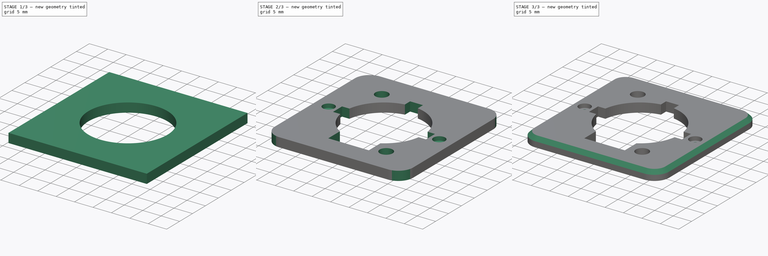
[diagram: build sequence overview — one tinted view per stage of 3, left to right]
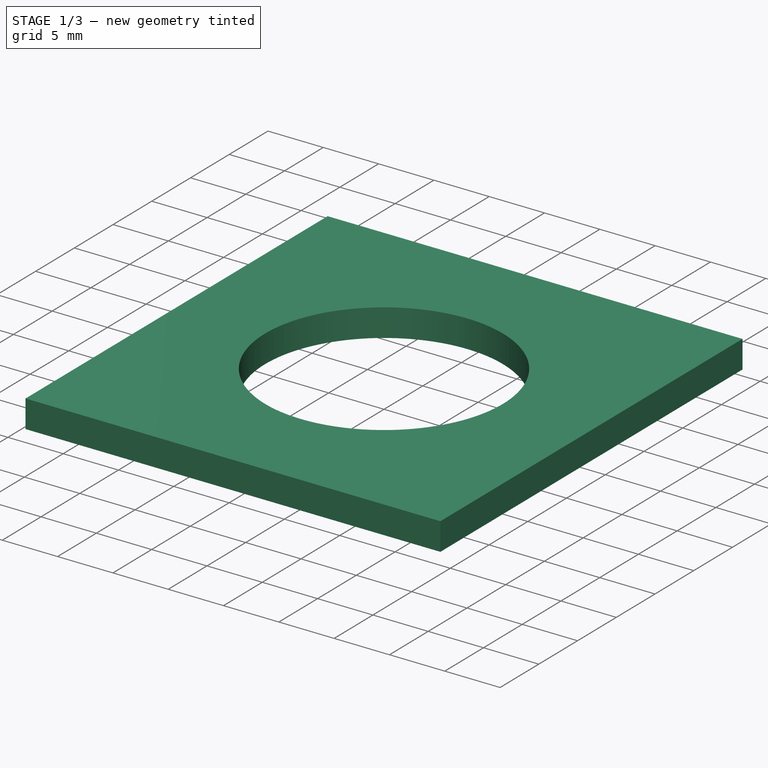
[diagram: stage 1 of 3 — iso view after this stage's code; geometry added in this stage tinted green]
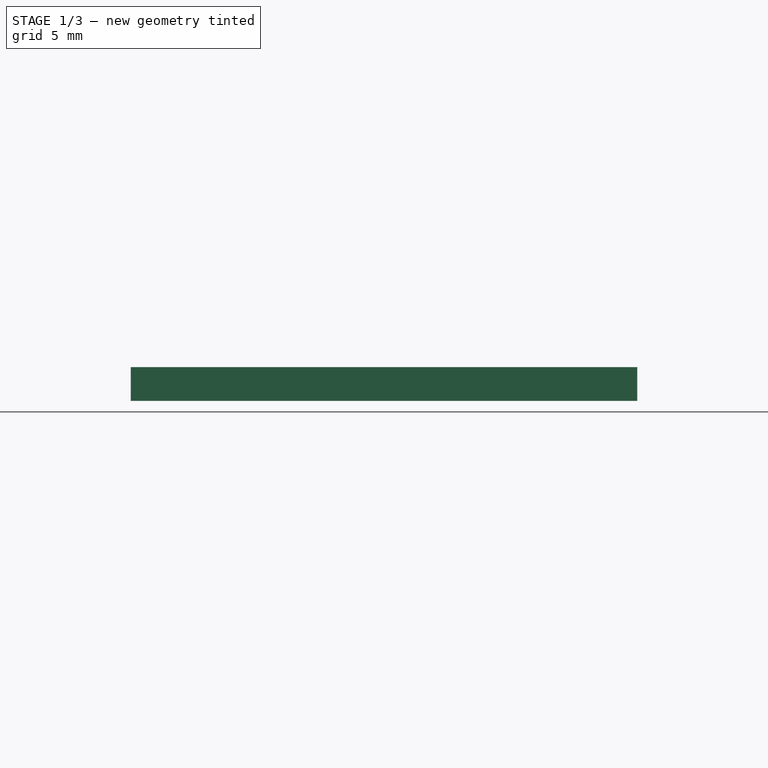
[diagram: stage 1 of 3 — front view after this stage's code; geometry added in this stage tinted green]
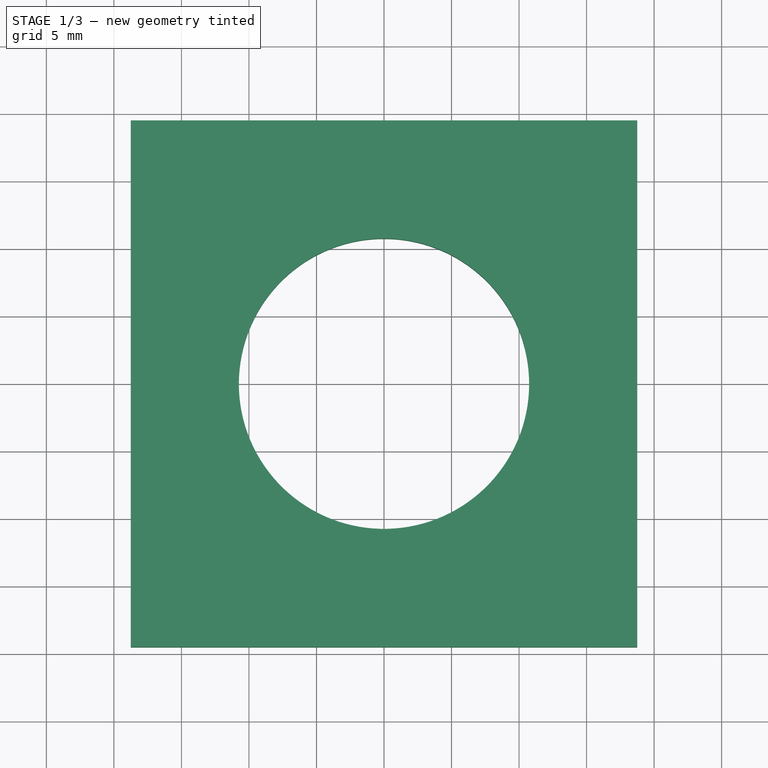
[diagram: stage 1 of 3 — top view after this stage's code; geometry added in this stage tinted green]
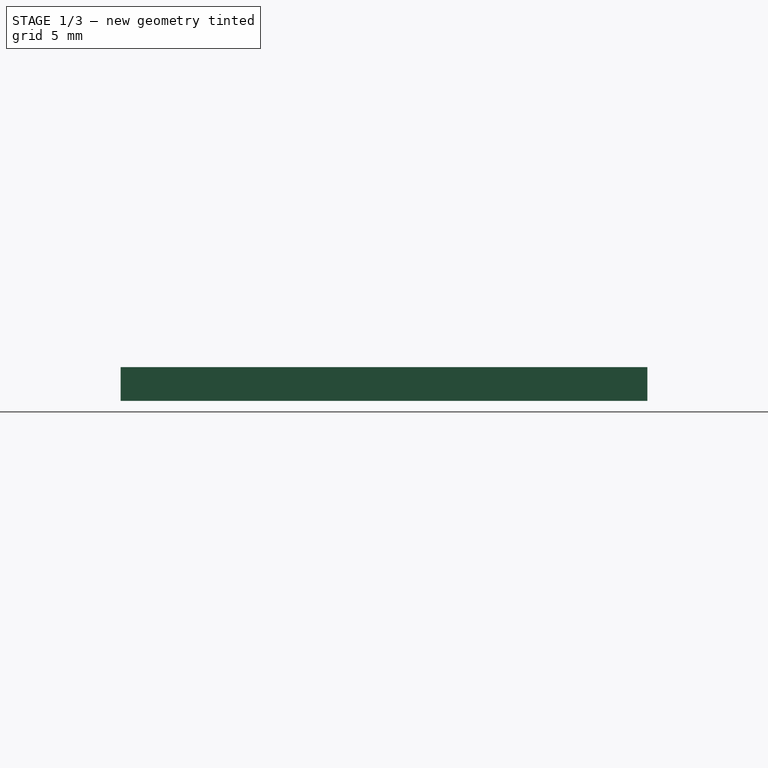
[diagram: stage 1 of 3 — right view after this stage's code; geometry added in this stage tinted green]
FCSTD DOCUMENT  (FreeCAD 0.21R33694 (Git))
Label: inline_box_xlr_socket_end
License: All rights reserved
LicenseURL: http://en.wikipedia.org/wiki/All_rights_reserved
objects: Sketcher::SketchObject×5, PartDesign::Pocket×4, PartDesign::Pad×1, PartDesign::Fillet×1, PartDesign::Chamfer×1, PartDesign::Body×1
note: 20 computed .brp shape members not serialized (recipe doc carries the construction recipe); baked Part::Feature solids carry a one-line shape summary decoded from their .brp

FEATURE [Sketcher::SketchObject] Sketch
  FullyConstrained = true
  MapMode = 5
  Support = -> [XY_Plane]
  sketch-geometry (4):
    g0: LineSegment StartX=-18.75 StartY=19.5 StartZ=0 EndX=18.75 EndY=19.5 EndZ=0
    g1: LineSegment StartX=18.75 StartY=19.5 StartZ=0 EndX=18.75 EndY=-19.5 EndZ=0
    g2: LineSegment StartX=18.75 StartY=-19.5 StartZ=0 EndX=-18.75 EndY=-19.5 EndZ=0
    g3: LineSegment StartX=-18.75 StartY=-19.5 StartZ=0 EndX=-18.75 EndY=19.5 EndZ=0
  constraints (12):
    c: Coincident(g0,g1)
    c: Coincident(g1,g2)
    c: Coincident(g2,g3)
    c: Coincident(g3,g0)
    c: Horizontal(g0)
    c: Horizontal(g2)
    c: Vertical(g1)
    c: Vertical(g3)
    c: DistanceX(g0,g0) = 37.5
    c: DistanceY(g1,g1) = 39
    c: DistanceY(g-1,g0) = 19.5
    c: DistanceX(g0,g-1) = 18.75
FEATURE [PartDesign::Pad] Pad
  Direction = (0,0,1)
  Length = 2.5
  Length2 = 10
  Profile = -> Sketch
  ReferenceAxis = -> Sketch [N_Axis]
  Type = 0
FEATURE [Sketcher::SketchObject] Sketch001
  FullyConstrained = true
  MapMode = 5
  Placement = pos=(0,0,2.5) rot=(0,0,1;0rad)
  Support = -> [Pad]
  sketch-geometry (1):
    g0: Circle CenterX=0 CenterY=0 CenterZ=0 NormalX=0 NormalY=0 NormalZ=1 AngleXU=0 Radius=10.75
  constraints (2):
    c: Coincident(g0,g-1)
    c: Diameter(g0) = 21.5
FEATURE [PartDesign::Pocket] Pocket
  BaseFeature = -> Pad
  Direction = (0,0,-1)
  Length = 5
  Length2 = 5
  Profile = -> Sketch001
  ReferenceAxis = -> Sketch001 [N_Axis]
  Type = 0
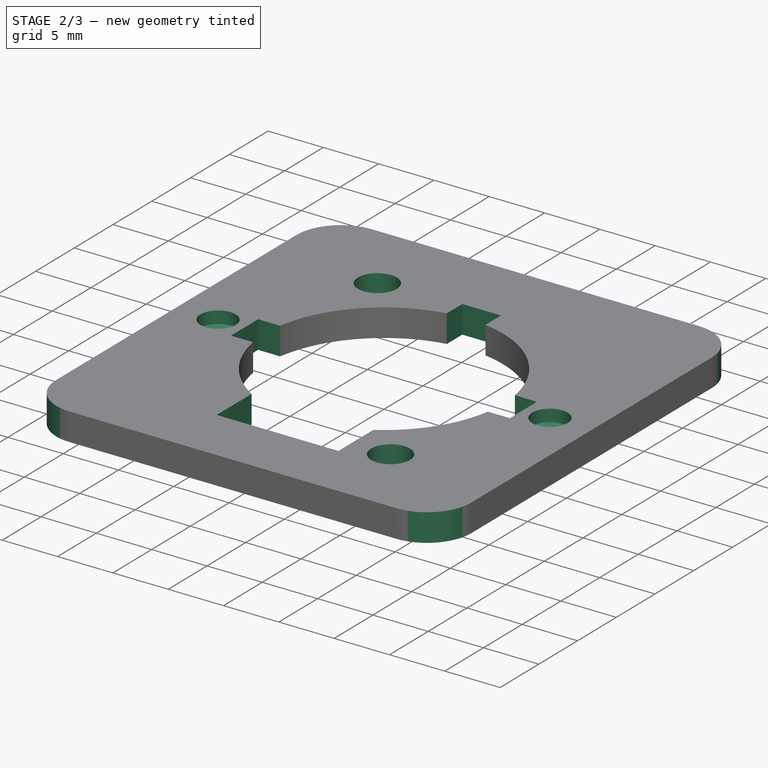
[diagram: stage 2 of 3 — iso view after this stage's code; geometry added in this stage tinted green]
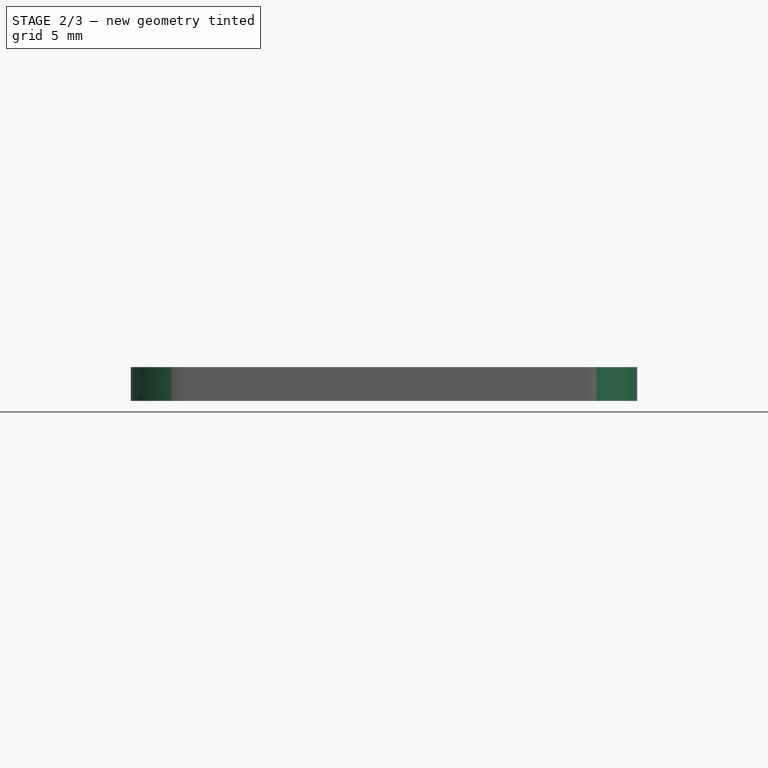
[diagram: stage 2 of 3 — front view after this stage's code; geometry added in this stage tinted green]
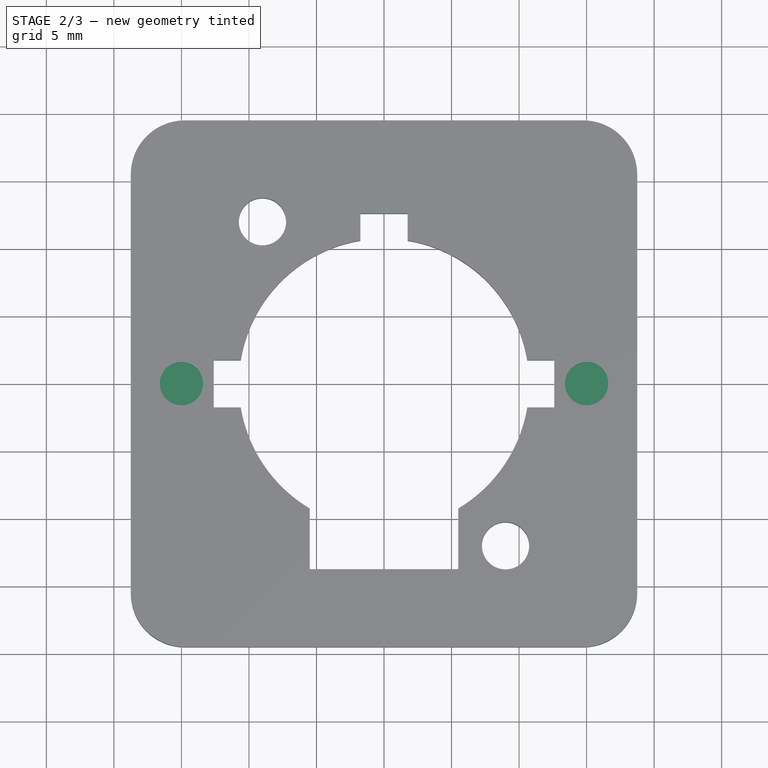
[diagram: stage 2 of 3 — top view after this stage's code; geometry added in this stage tinted green]
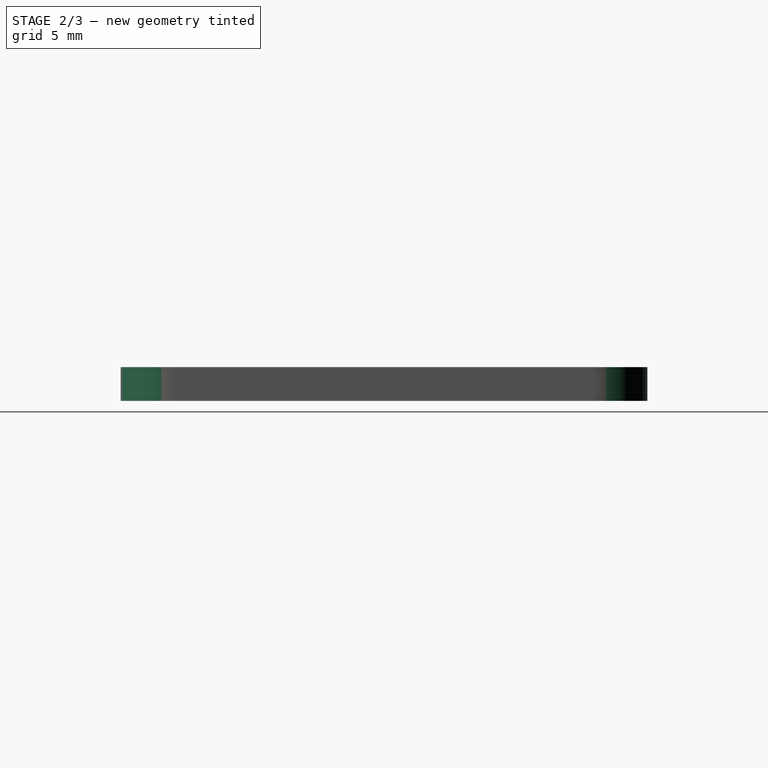
[diagram: stage 2 of 3 — right view after this stage's code; geometry added in this stage tinted green]
FEATURE [Sketcher::SketchObject] Sketch002
  ExternalGeometry = -> [Pocket]
  FullyConstrained = true
  MapMode = 5
  Placement = pos=(0,0,2.5) rot=(0,0,1;0rad)
  Support = -> [Pocket]
  sketch-geometry (18):
    g0: LineSegment StartX=10.6066 StartY=1.75 StartZ=0 EndX=12.6066 EndY=1.75 EndZ=0
    g1: LineSegment StartX=12.6066 StartY=1.75 StartZ=0 EndX=12.6066 EndY=-1.75 EndZ=0
    g2: LineSegment StartX=12.6066 StartY=-1.75 StartZ=0 EndX=10.6066 EndY=-1.75 EndZ=0
    g3: LineSegment StartX=10.6066 StartY=-1.75 StartZ=0 EndX=10.6066 EndY=1.75 EndZ=0
    g4: LineSegment StartX=-12.6066 StartY=1.75 StartZ=0 EndX=-10.6066 EndY=1.75 EndZ=0
    g5: LineSegment StartX=-10.6066 StartY=1.75 StartZ=0 EndX=-10.6066 EndY=-1.75 EndZ=0
    g6: LineSegment StartX=-10.6066 StartY=-1.75 StartZ=0 EndX=-12.6066 EndY=-1.75 EndZ=0
    g7: LineSegment StartX=-12.6066 StartY=-1.75 StartZ=0 EndX=-12.6066 EndY=1.75 EndZ=0
    g8: LineSegment StartX=-1.75 StartY=12.6066 StartZ=0 EndX=1.75 EndY=12.6066 EndZ=0
    g9: LineSegment StartX=1.75 StartY=12.6066 StartZ=0 EndX=1.75 EndY=10.6066 EndZ=0
    g10: LineSegment StartX=1.75 StartY=10.6066 StartZ=0 EndX=-1.75 EndY=10.6066 EndZ=0
    g11: LineSegment StartX=-1.75 StartY=10.6066 StartZ=0 EndX=-1.75 EndY=12.6066 EndZ=0
    g12: LineSegment StartX=-5.5 StartY=-9.23648 StartZ=0 EndX=5.5 EndY=-9.23648 EndZ=0
    g13: LineSegment StartX=5.5 StartY=-9.23648 StartZ=0 EndX=5.5 EndY=-13.7365 EndZ=0
    g14: LineSegment StartX=5.5 StartY=-13.7365 StartZ=0 EndX=-5.5 EndY=-13.7365 EndZ=0
    g15: LineSegment StartX=-5.5 StartY=-13.7365 StartZ=0 EndX=-5.5 EndY=-9.23648 EndZ=0
    g16: Circle CenterX=-9 CenterY=12 CenterZ=0 NormalX=0 NormalY=0 NormalZ=1 AngleXU=0 Radius=1.75
    g17: Circle CenterX=9 CenterY=-12 CenterZ=0 NormalX=0 NormalY=0 NormalZ=1 AngleXU=0 Radius=1.75
  constraints (54):
    c: Coincident(g0,g1)
    c: Coincident(g1,g2)
    c: Coincident(g2,g3)
    c: Coincident(g3,g0)
    c: Horizontal(g0)
    c: Horizontal(g2)
    c: Vertical(g1)
    c: Vertical(g3)
    c: Coincident(g4,g5)
    c: Coincident(g5,g6)
    c: Coincident(g6,g7)
    c: Coincident(g7,g4)
    c: Horizontal(g4)
    c: Horizontal(g6)
    c: Vertical(g5)
    c: Vertical(g7)
    c: Coincident(g8,g9)
    c: Coincident(g9,g10)
    c: Coincident(g10,g11)
    c: Coincident(g11,g8)
    c: Horizontal(g8)
    c: Horizontal(g10)
    c: Vertical(g9)
    c: Vertical(g11)
    c: Equal(g0,g9)
    c: Equal(g9,g4)
    c: DistanceY(g9,g9) = 2
    c: Equal(g1,g8)
    c: Equal(g8,g7)
    c: DistanceX(g8,g8) = 3.5
    c: DistanceY(g-1,g4) = 1.75
    c: DistanceY(g-1,g0) = 1.75
    c: DistanceX(g10,g-1) = 1.75
    c: PointOnObject(g10,g-3)
    c: PointOnObject(g4,g-3)
    c: PointOnObject(g0,g-3)
    c: Coincident(g12,g13)
    c: Coincident(g13,g14)
    c: Coincident(g14,g15)
    c: Coincident(g15,g12)
    c: Horizontal(g12)
    c: Horizontal(g14)
    c: Vertical(g13)
    c: Vertical(g15)
    c: DistanceX(g12,g12) = 11
    c: DistanceX(g12,g-3) = 5.5
    c: DistanceY(g13,g13) = 4.5
    c: PointOnObject(g12,g-3)
    c: Equal(g17,g16)
    c: Diameter(g17) = 3.5
    c: DistanceY(g-3,g16) = 12
    c: DistanceY(g17,g-3) = 12
    c: DistanceX(g-3,g17) = 9
    c: DistanceX(g16,g-3) = 9
FEATURE [PartDesign::Pocket] Pocket001
  BaseFeature = -> Pocket
  Direction = (0,0,-1)
  Length = 5
  Length2 = 5
  Profile = -> Sketch002
  ReferenceAxis = -> Sketch002 [N_Axis]
  Type = 0
FEATURE [PartDesign::Fillet] Fillet
  Base = -> Pocket001 [Edge8,Edge5,Edge2,Edge1]
  BaseFeature = -> Pocket001
  Radius = 4
  SupportTransform = false
  UseAllEdges = false
FEATURE [Sketcher::SketchObject] Sketch003
  FullyConstrained = true
  MapMode = 5
  Placement = pos=(0,0,2.5) rot=(0,0,1;0rad)
  Support = -> [Fillet]
  sketch-geometry (2):
    g0: Circle CenterX=-15 CenterY=0 CenterZ=0 NormalX=0 NormalY=0 NormalZ=1 AngleXU=0 Radius=1.6
    g1: Circle CenterX=15 CenterY=0 CenterZ=0 NormalX=0 NormalY=0 NormalZ=1 AngleXU=0 Radius=1.6
  constraints (6):
    c: PointOnObject(g0,g-1)
    c: PointOnObject(g1,g-1)
    c: DistanceX(g0,g1) = 30
    c: Equal(g0,g1)
    c: Diameter(g0) = 3.2
    c: DistanceX(g0,g-1) = 15
FEATURE [PartDesign::Pocket] Pocket002
  BaseFeature = -> Fillet
  Direction = (0,0,-1)
  Length = 1.1
  Length2 = 5
  Profile = -> Sketch003
  ReferenceAxis = -> Sketch003 [N_Axis]
  Type = 0
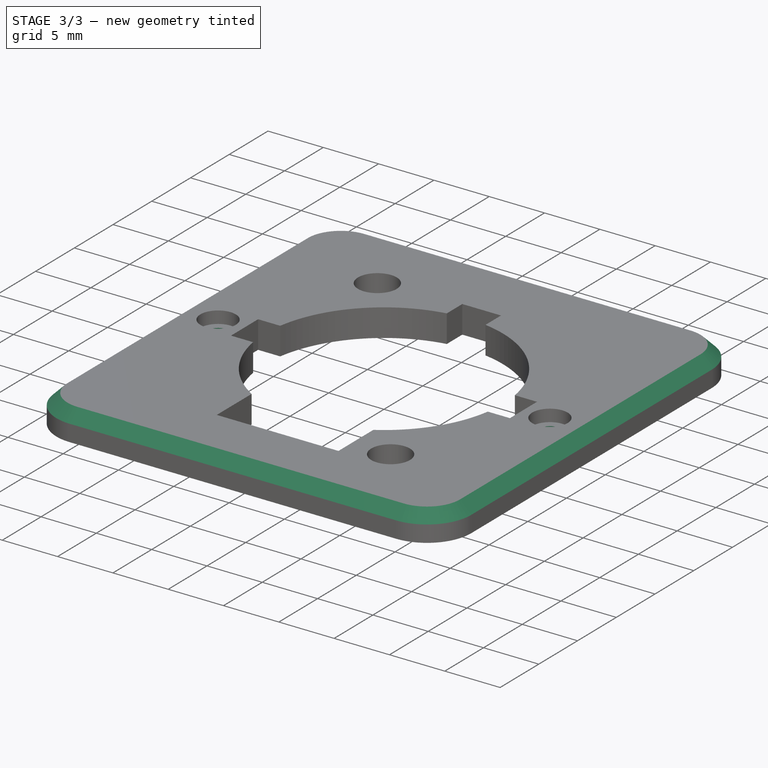
[diagram: stage 3 of 3 — iso view after this stage's code; geometry added in this stage tinted green]
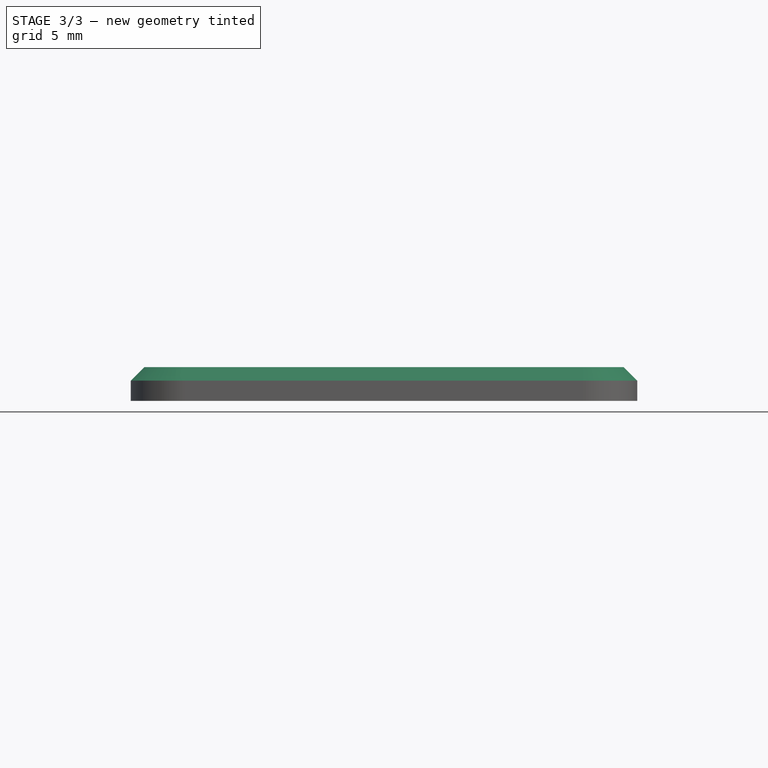
[diagram: stage 3 of 3 — front view after this stage's code; geometry added in this stage tinted green]
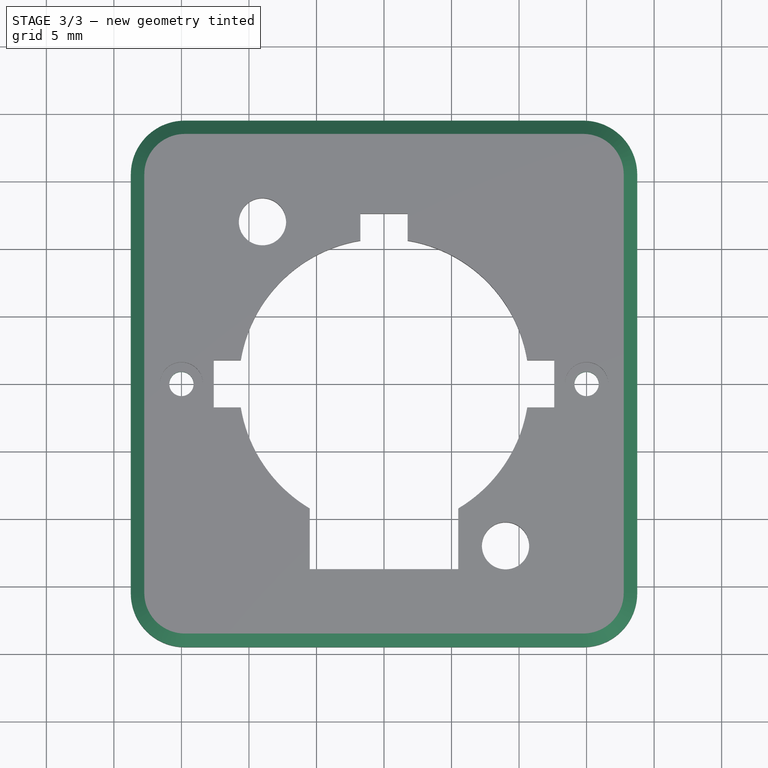
[diagram: stage 3 of 3 — top view after this stage's code; geometry added in this stage tinted green]
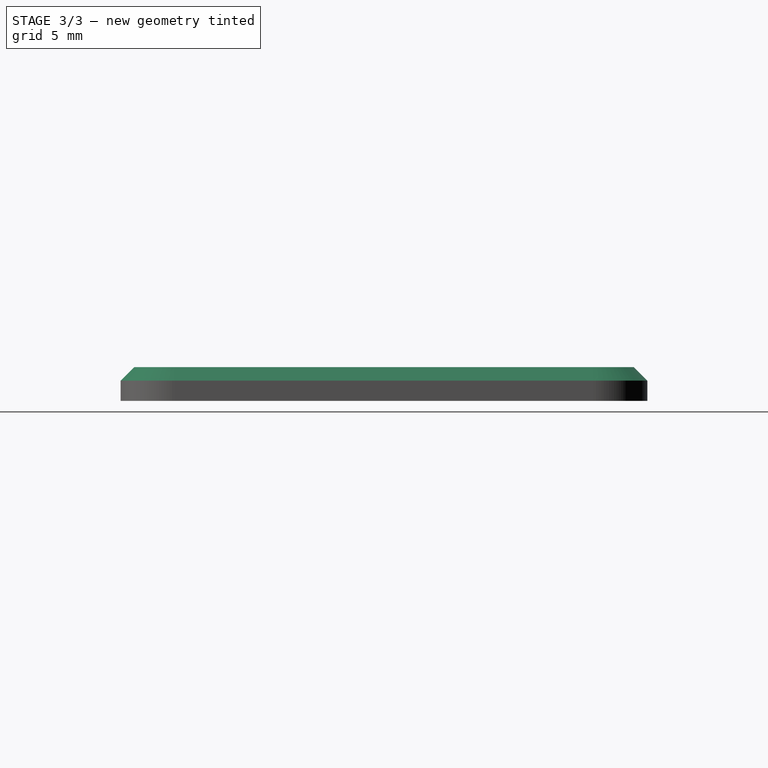
[diagram: stage 3 of 3 — right view after this stage's code; geometry added in this stage tinted green]
FEATURE [Sketcher::SketchObject] Sketch004
  FullyConstrained = true
  MapMode = 5
  Placement = pos=(0,0,1.4) rot=(0,0,1;0rad)
  Support = -> [Pocket002]
  sketch-geometry (2):
    g0: Circle CenterX=-15 CenterY=0 CenterZ=0 NormalX=0 NormalY=0 NormalZ=1 AngleXU=0 Radius=0.9
    g1: Circle CenterX=15 CenterY=0 CenterZ=0 NormalX=0 NormalY=0 NormalZ=1 AngleXU=0 Radius=0.9
  constraints (6):
    c: PointOnObject(g0,g-1)
    c: PointOnObject(g1,g-1)
    c: Equal(g1,g0)
    c: Diameter(g1) = 1.8
    c: DistanceX(g0,g1) = 30
    c: DistanceX(g0,g-1) = 15
FEATURE [PartDesign::Pocket] Pocket003
  BaseFeature = -> Pocket002
  Direction = (0,0,-1)
  Length = 5
  Length2 = 5
  Profile = -> Sketch004
  ReferenceAxis = -> Sketch004 [N_Axis]
  Type = 0
FEATURE [PartDesign::Chamfer] Chamfer
  Angle = 45
  Base = -> Pocket003 [Edge36]
  BaseFeature = -> Pocket003
  ChamferType = 0
  FlipDirection = false
  Size = 1
  Size2 = 1
  SupportTransform = false
  UseAllEdges = false
FEATURE [PartDesign::Body] Body
  Group = -> [Sketch,Pad,Sketch001,Pocket,Sketch002,Pocket001,Fillet,Sketch003,Pocket002,Sketch004,Pocket003,Chamfer]
  Origin = -> Origin
  Tip = -> Chamfer
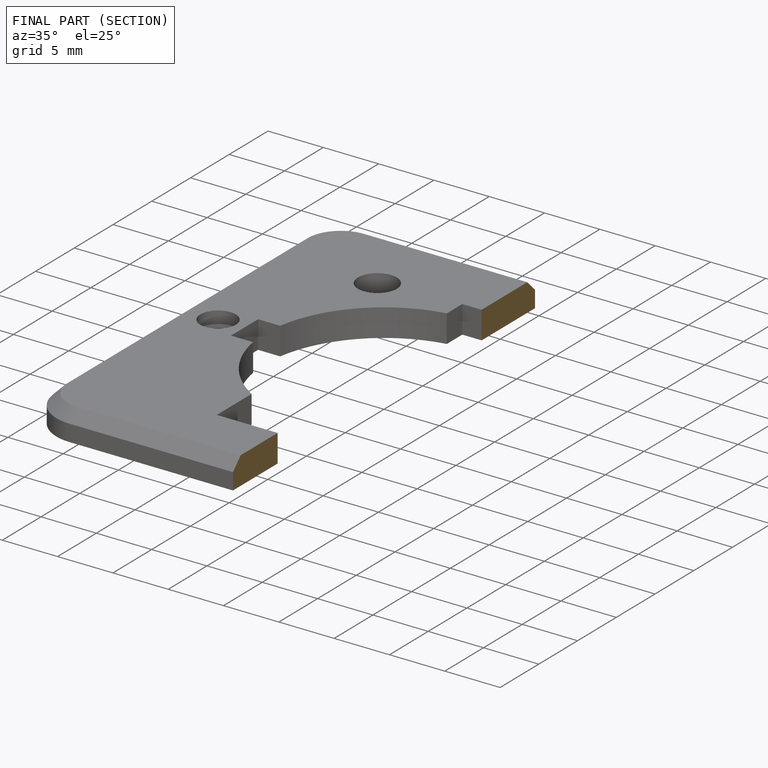
[diagram: finished part — half-section view (interior)]
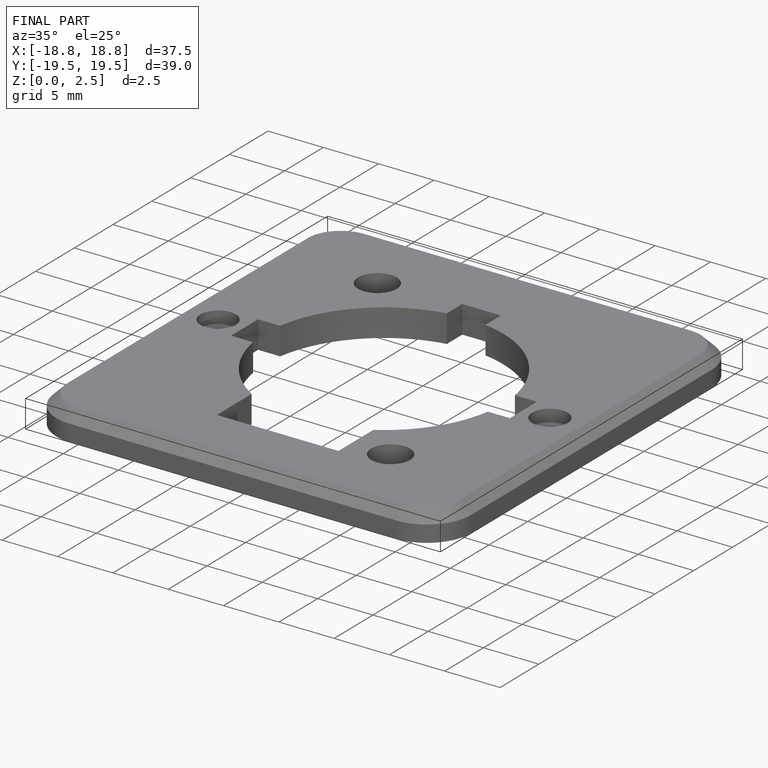
[diagram: finished part — iso view with bounding-box wireframe]
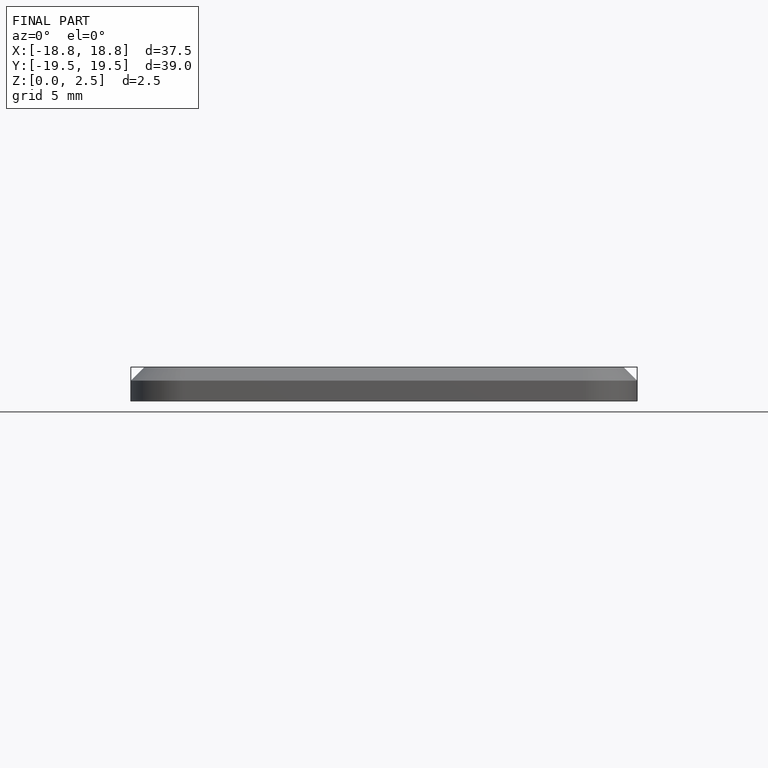
[diagram: finished part — front view with bounding-box wireframe]
